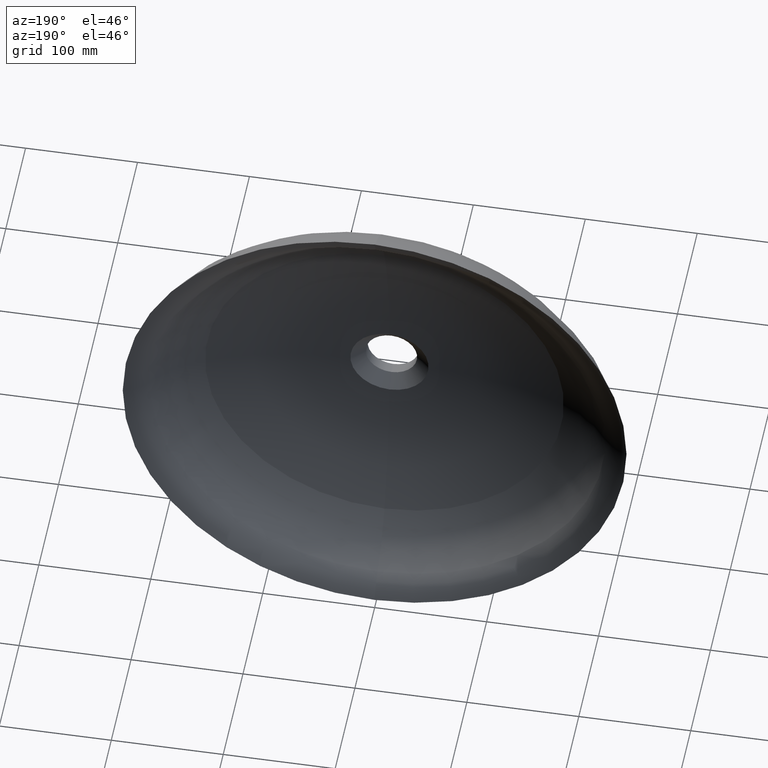
[diagram: clean part render]
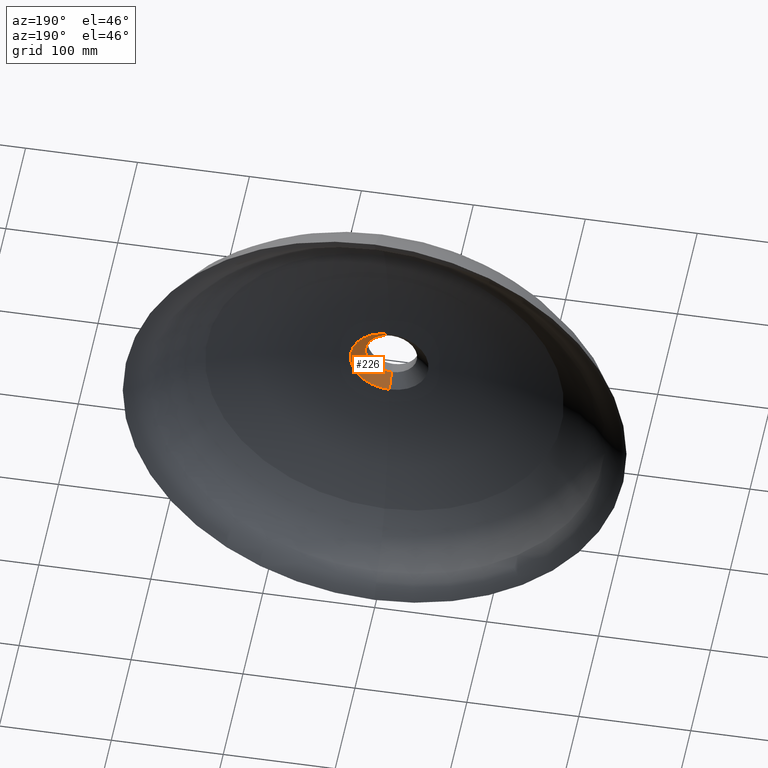
[diagram: same view with one face highlighted and labeled with its STEP entity id]
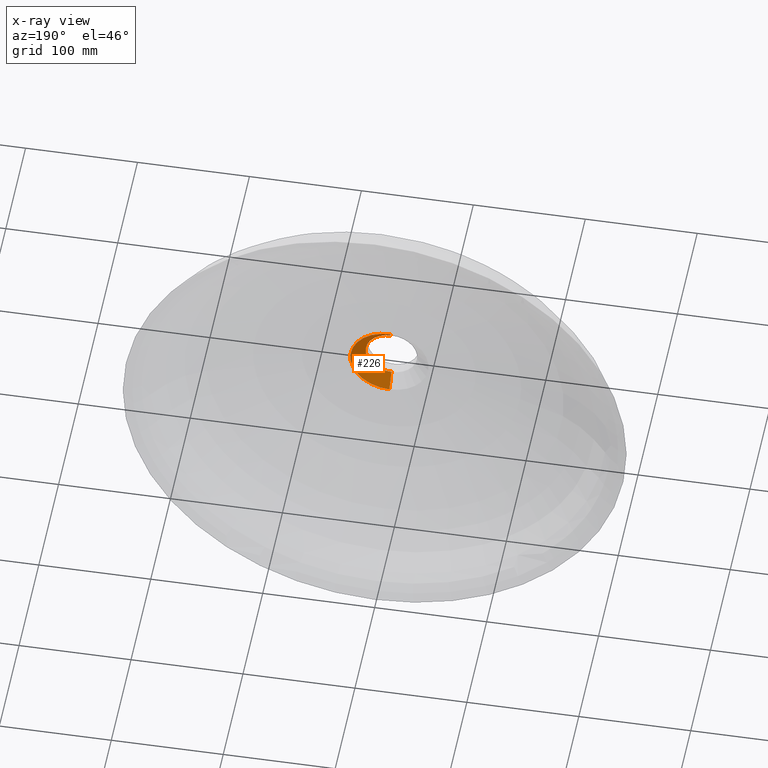
[diagram: x-ray of the same camera — body ghosted, the highlighted face saturated]
A machine part, auxiliary view. The second image highlights one B-rep face of the part: STEP entity #226.
The next image is the same camera in x-ray: the body ghosted, the highlighted face saturated — about 0% of this face is hidden behind the body in this view.
In plain terms, the highlighted conical surface has half-angle 50 deg.
Its self-contained STEP definition (entity closure, byte-faithful):
#31 = DIRECTION ( 'NONE',  ( -0.0000000000000000000, 1.000000000000000000, -0.0000000000000000000 ) ) ;
#33 = CONICAL_SURFACE ( 'NONE', #426, 23.00000000000002132, 0.8726646259971664321 ) ;
#40 = CIRCLE ( 'NONE', #67, 23.00000000000002132 ) ;
#43 = VERTEX_POINT ( 'NONE', #368 ) ;
#47 = DIRECTION ( 'NONE',  ( 0.0000000000000000000, 0.6427876096865380307, 0.7660444431189791237 ) ) ;
#67 = AXIS2_PLACEMENT_3D ( 'NONE', #447, #90, #527 ) ;
#73 = ORIENTED_EDGE ( 'NONE', *, *, #80, .F. ) ;
#80 = EDGE_CURVE ( 'NONE', #146, #253, #40, .T. ) ;
#90 = DIRECTION ( 'NONE',  ( -0.0000000000000000000, 1.000000000000000000, -0.0000000000000000000 ) ) ;
#97 = CARTESIAN_POINT ( 'NONE',  ( 2.417547043600335207E-14, -85.00000000000001421, -23.00000000000002132 ) ) ;
#99 = DIRECTION ( 'NONE',  ( 9.381338752702744340E-17, 0.6427876096865380307, -0.7660444431189791237 ) ) ;
#128 = LINE ( 'NONE', #544, #185 ) ;
#135 = CARTESIAN_POINT ( 'NONE',  ( 2.135878279796443735E-14, -85.00000000000001421, 23.00000000000002132 ) ) ;
#146 = VERTEX_POINT ( 'NONE', #135 ) ;
#185 = VECTOR ( 'NONE', #47, 1000.000000000000000 ) ;
#190 = CARTESIAN_POINT ( 'NONE',  ( 2.135878279796443735E-14, -85.00000000000001421, 0.0000000000000000000 ) ) ;
#207 = CARTESIAN_POINT ( 'NONE',  ( 2.135878279796443735E-14, -75.00000000000001421, 0.0000000000000000000 ) ) ;
#211 = DIRECTION ( 'NONE',  ( 0.0000000000000000000, 0.0000000000000000000, 1.000000000000000000 ) ) ;
#213 = DIRECTION ( 'NONE',  ( -0.0000000000000000000, 1.000000000000000000, -0.0000000000000000000 ) ) ;
#226 = ADVANCED_FACE ( 'NONE', ( #460 ), #33, .F. ) ;
#253 = VERTEX_POINT ( 'NONE', #478 ) ;
#263 = EDGE_CURVE ( 'NONE', #43, #492, #481, .T. ) ;
#269 = ORIENTED_EDGE ( 'NONE', *, *, #528, .F. ) ;
#288 = ORIENTED_EDGE ( 'NONE', *, *, #263, .T. ) ;
#368 = CARTESIAN_POINT ( 'NONE',  ( 2.135878279796443735E-14, -75.00000000000001421, 34.91753592594216826 ) ) ;
#387 = DIRECTION ( 'NONE',  ( 0.0000000000000000000, 0.0000000000000000000, 1.000000000000000000 ) ) ;
#393 = EDGE_CURVE ( 'NONE', #146, #43, #128, .T. ) ;
#400 = LINE ( 'NONE', #97, #430 ) ;
#424 = EDGE_LOOP ( 'NONE', ( #269, #73, #470, #288 ) ) ;
#426 = AXIS2_PLACEMENT_3D ( 'NONE', #190, #31, #387 ) ;
#430 = VECTOR ( 'NONE', #99, 1000.000000000000000 ) ;
#447 = CARTESIAN_POINT ( 'NONE',  ( 2.135878279796443735E-14, -85.00000000000001421, 0.0000000000000000000 ) ) ;
#460 = FACE_OUTER_BOUND ( 'NONE', #424, .T. ) ;
#470 = ORIENTED_EDGE ( 'NONE', *, *, #393, .T. ) ;
#471 = CARTESIAN_POINT ( 'NONE',  ( 3.276855663335383104E-14, -75.00000000000001421, -34.91753592594216826 ) ) ;
#478 = CARTESIAN_POINT ( 'NONE',  ( 2.417547043600335207E-14, -85.00000000000001421, -23.00000000000002132 ) ) ;
#481 = CIRCLE ( 'NONE', #511, 34.91753592594216826 ) ;
#492 = VERTEX_POINT ( 'NONE', #471 ) ;
#511 = AXIS2_PLACEMENT_3D ( 'NONE', #207, #213, #211 ) ;
#527 = DIRECTION ( 'NONE',  ( 0.0000000000000000000, 0.0000000000000000000, 1.000000000000000000 ) ) ;
#528 = EDGE_CURVE ( 'NONE', #253, #492, #400, .T. ) ;
#544 = CARTESIAN_POINT ( 'NONE',  ( 2.135878279796443735E-14, -85.00000000000001421, 23.00000000000002132 ) ) ;